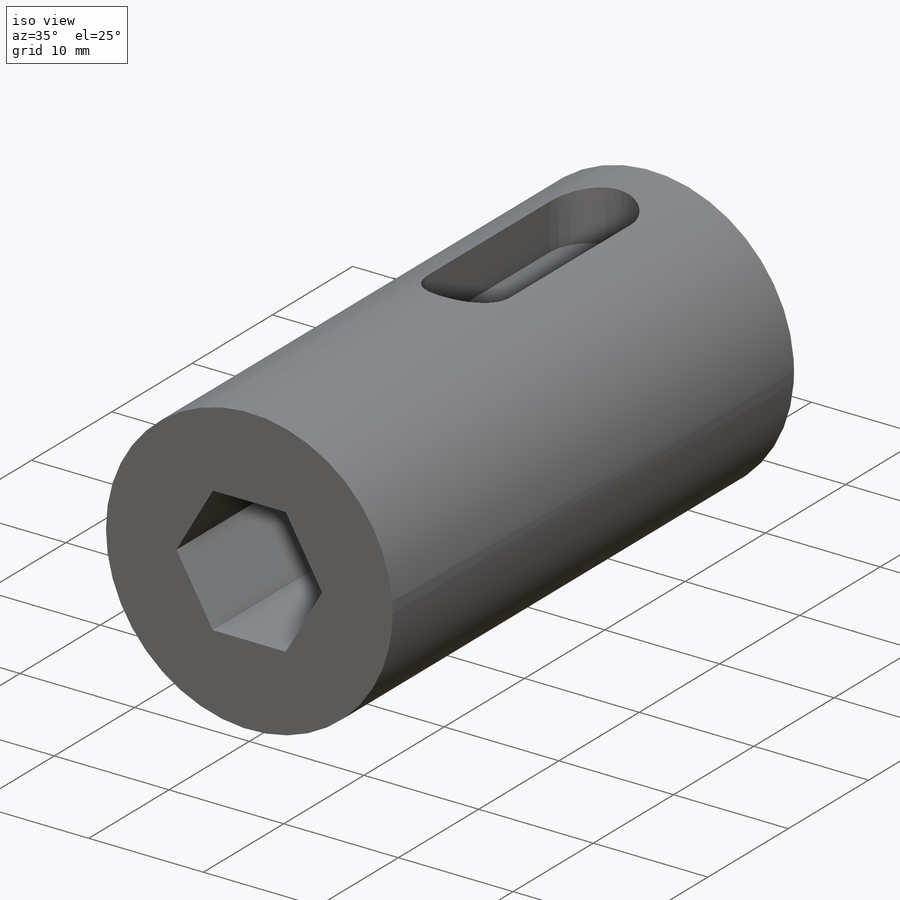
[diagram: iso view]
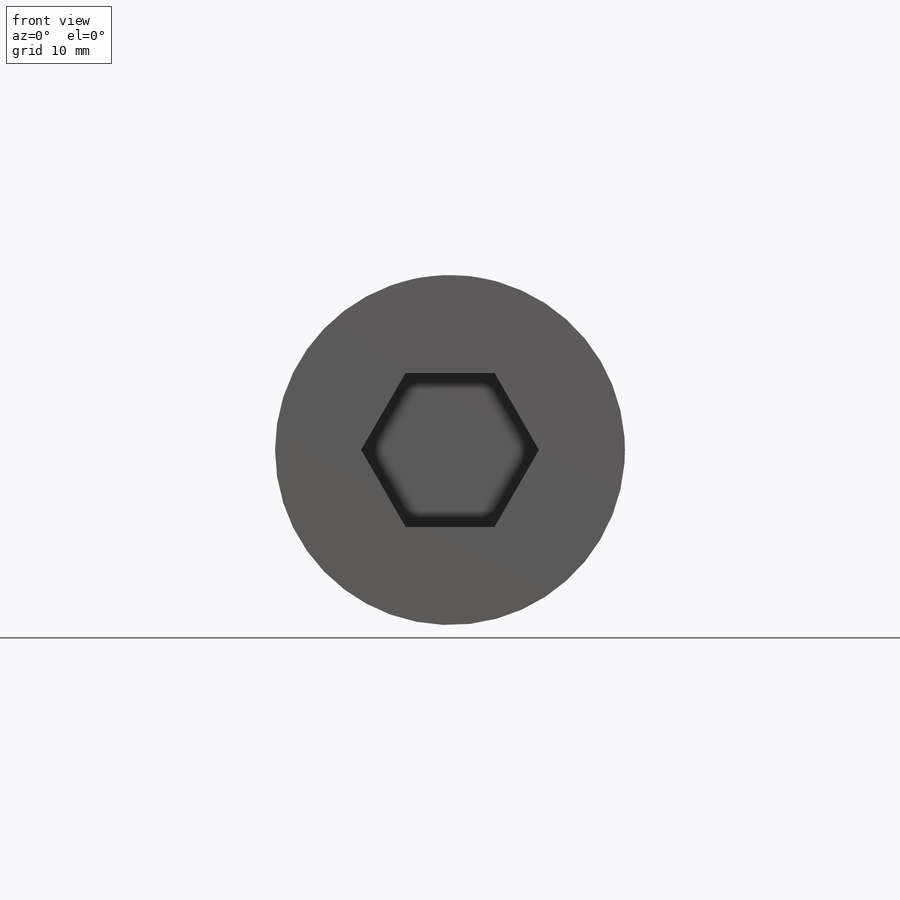
[diagram: front view]
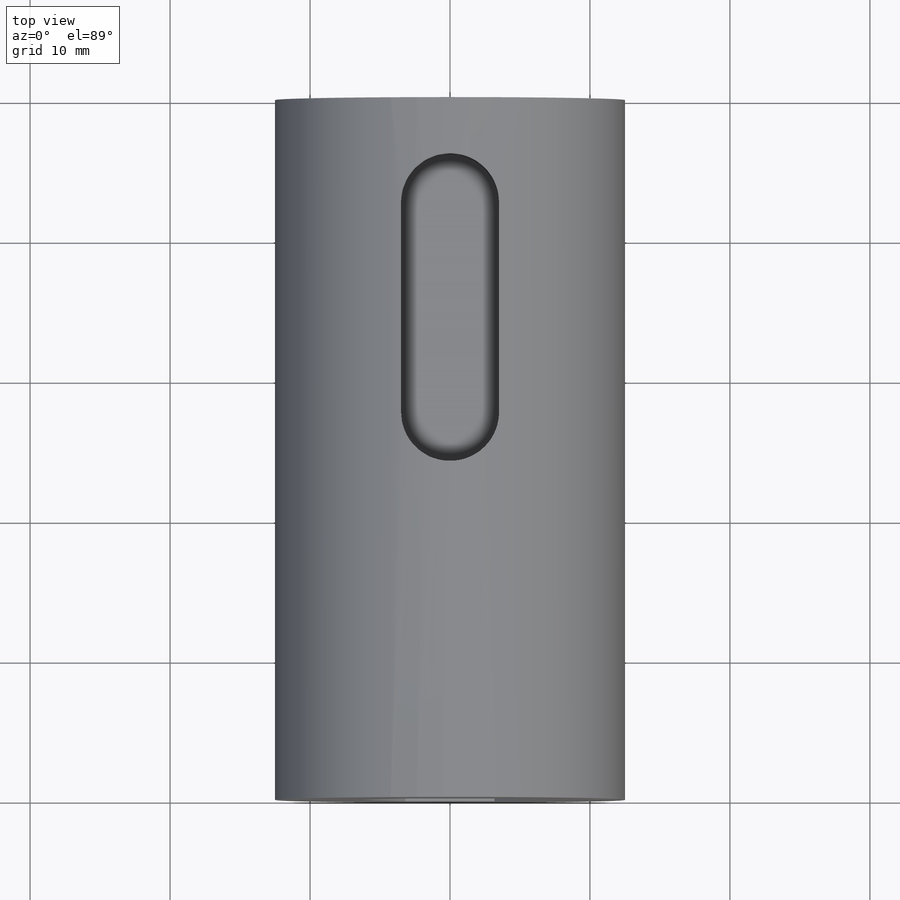
[diagram: top view]
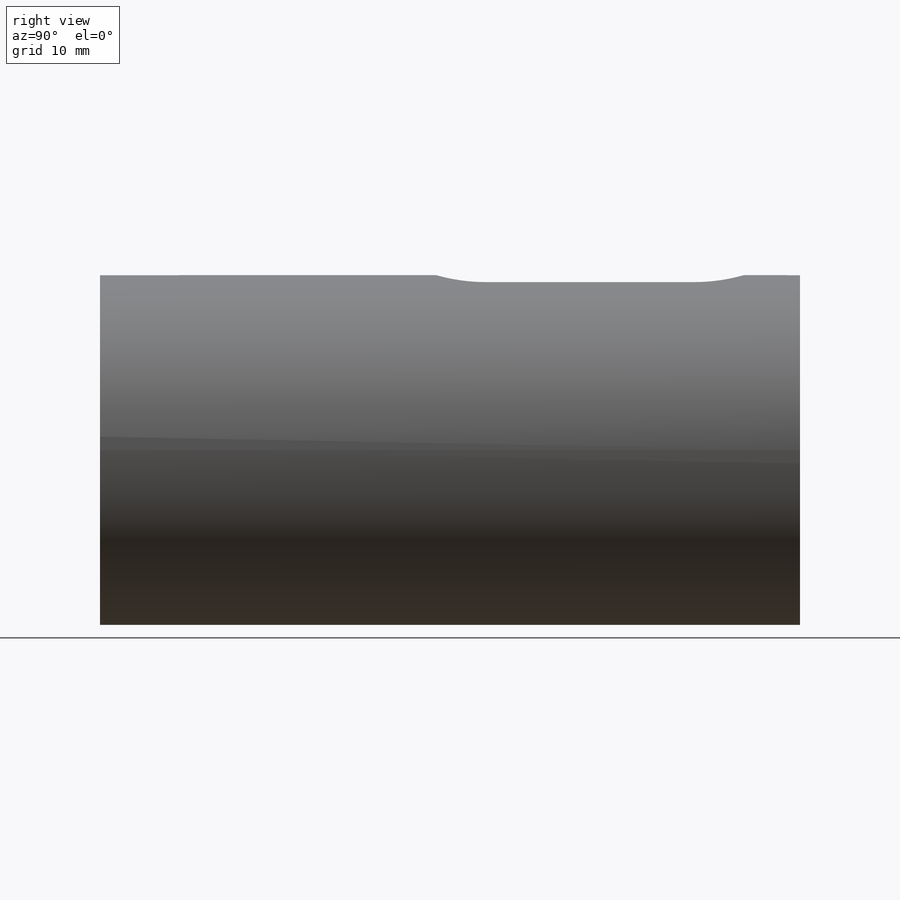
[diagram: right view]
SOLIDWORKS PART (.sldprt)
format: sldprt  version: not decoded by parser v0  size: 166,400 bytes
history: native  units: mm
features: plane x3, sketch x3, cut_extrude x2, material x1, extrude x1 (+8 scaffold rows collapsed)
feature tree (18):
  scaffold x8  (default folders/planes/origin — collapsed)
  material  "Materiale <non specificato>"
  plane  "Piano frontale"
  plane  "Piano superiore"
  plane  "Piano destro"
  sketch  "Schizzo1"  dims[D1=25.0mm]
  extrude  "Estrusione-Estrusione1"  Depth=50mm
  sketch  "Schizzo2"  dims[D1=11.0mm]
  cut_extrude  "Taglio-Estrusione1"  Depth=15mm
  sketch  "Schizzo3"  dims[D1=15.0mm D2=15.0mm D3=7.0mm]
  cut_extrude  "Taglio-Estrusione3"  Depth=15mm
decode coverage: 6 of 6 modeling features carry decoded parameters
note: suppression state not decoded; provenance and decode notes live in map.json
